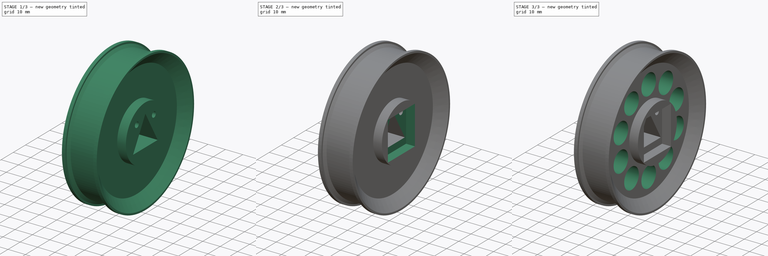
[diagram: build sequence overview — one tinted view per stage of 3, left to right]
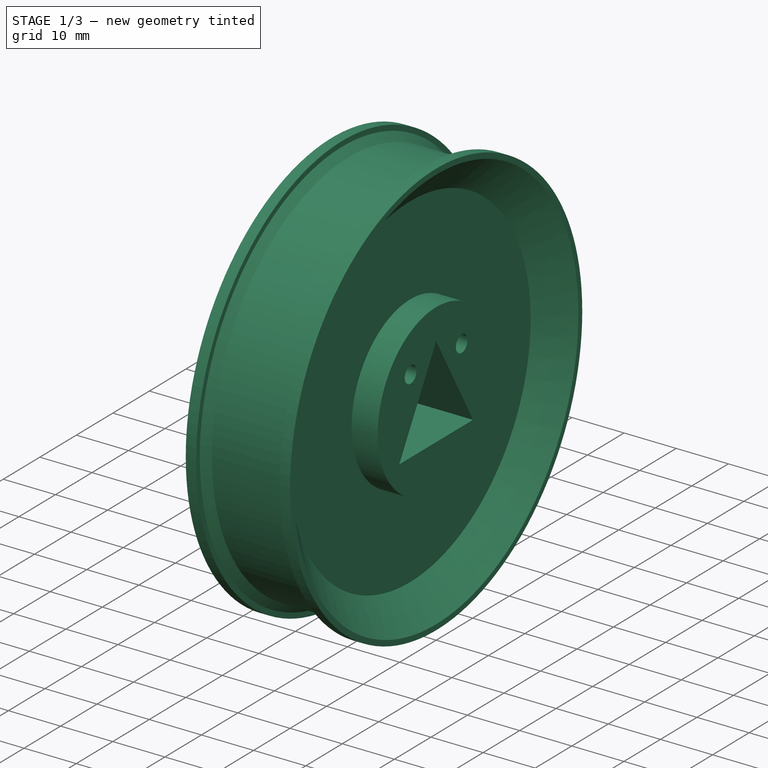
[diagram: stage 1 of 3 — iso view after this stage's code; geometry added in this stage tinted green]
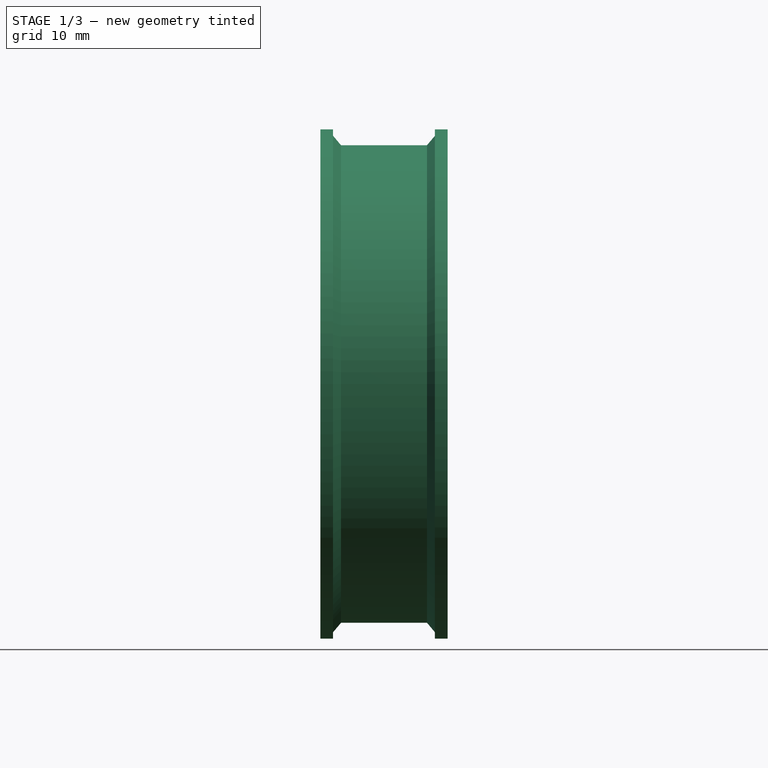
[diagram: stage 1 of 3 — front view after this stage's code; geometry added in this stage tinted green]
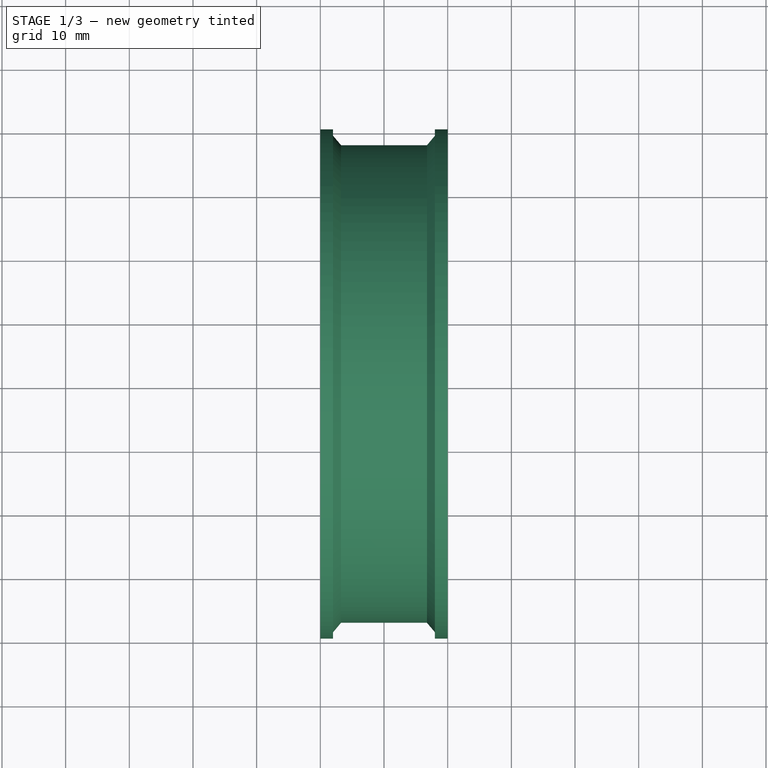
[diagram: stage 1 of 3 — top view after this stage's code; geometry added in this stage tinted green]
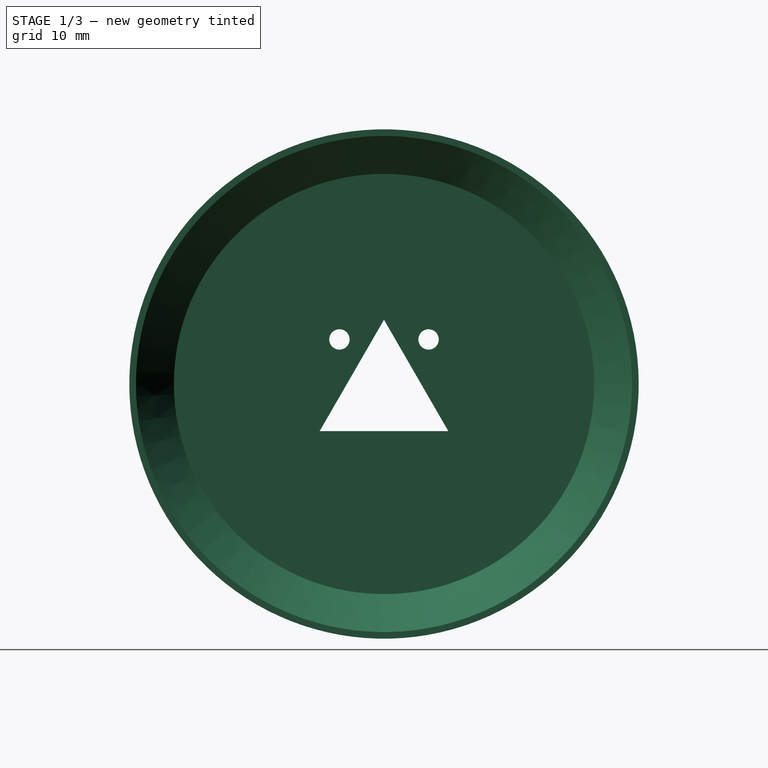
[diagram: stage 1 of 3 — right view after this stage's code; geometry added in this stage tinted green]
FCSTD DOCUMENT  (FreeCAD 0.17R13541 (Git))
Label: rim_v1
License: All rights reserved
LicenseURL: http://en.wikipedia.org/wiki/All_rights_reserved
objects: Sketcher::SketchObject×5, PartDesign::Pocket×4, PartDesign::Revolution×1, PartDesign::PolarPattern×1, PartDesign::Body×1
note: 17 computed .brp shape members not serialized (recipe doc carries the construction recipe); baked Part::Feature solids carry a one-line shape summary decoded from their .brp

FEATURE [Sketcher::SketchObject] Sketch
  MapMode = 5
  Support = -> [XY_Plane]
  sketch-geometry (18):
    g0: LineSegment StartX=8 StartY=39 StartZ=0 EndX=8 EndY=40 EndZ=0
    g1: LineSegment StartX=8 StartY=40 StartZ=0 EndX=10 EndY=40 EndZ=0
    g2: LineSegment StartX=10 StartY=40 StartZ=0 EndX=10 EndY=38.9588 EndZ=0
    g3: LineSegment StartX=10 StartY=38.9588 StartZ=0 EndX=5 EndY=33 EndZ=0
    g4: LineSegment StartX=5 StartY=33 StartZ=0 EndX=5 EndY=16 EndZ=0
    g5: LineSegment StartX=5 StartY=16 StartZ=0 EndX=10 EndY=16 EndZ=0
    g6: LineSegment StartX=10 StartY=16 StartZ=0 EndX=10 EndY=1 EndZ=0
    g7: LineSegment StartX=10 StartY=1 StartZ=0 EndX=-10 EndY=1 EndZ=0
    g8: LineSegment StartX=-10 StartY=1 StartZ=0 EndX=-10 EndY=16 EndZ=0
    g9: LineSegment StartX=-10 StartY=16 StartZ=0 EndX=-5 EndY=16 EndZ=0
    g10: LineSegment StartX=-5 StartY=16 StartZ=0 EndX=-5 EndY=33 EndZ=0
    g11: LineSegment StartX=-5 StartY=33 StartZ=0 EndX=-10 EndY=38.9588 EndZ=0
    g12: LineSegment StartX=-10 StartY=38.9588 StartZ=0 EndX=-10 EndY=40 EndZ=0
    g13: LineSegment StartX=-10 StartY=40 StartZ=0 EndX=-8 EndY=40 EndZ=0
    g14: LineSegment StartX=-8 StartY=40 StartZ=0 EndX=-8 EndY=39 EndZ=0
    g15: LineSegment StartX=-8 StartY=39 StartZ=0 EndX=-6.75 EndY=37.5103 EndZ=0
    g16: LineSegment StartX=-6.75 StartY=37.5103 StartZ=0 EndX=6.75 EndY=37.5103 EndZ=0
    g17: LineSegment StartX=6.75 StartY=37.5103 StartZ=0 EndX=8 EndY=39 EndZ=0
  constraints (53):
    c: Vertical(g0)
    c: Coincident(g1,g0)
    c: Horizontal(g1)
    c: Coincident(g2,g1)
    c: Coincident(g2,g3)
    c: Coincident(g3,g4)
    c: Vertical(g4)
    c: Coincident(g4,g5)
    c: Coincident(g5,g6)
    c: Vertical(g6)
    c: Coincident(g6,g7)
    c: Horizontal(g7)
    c: Coincident(g7,g8)
    c: Coincident(g8,g9)
    c: Horizontal(g9)
    c: Coincident(g9,g10)
    c: Vertical(g10)
    c: Coincident(g10,g11)
    c: Coincident(g11,g12)
    c: Coincident(g12,g13)
    c: Coincident(g13,g14)
    c: Vertical(g14)
    c: Horizontal(g13)
    c: Vertical(g2)
    c: Vertical(g12)
    c: DistanceY(g-1,g6) = 1
    c: Equal(g6,g8)
    c: Horizontal(g5)
    c: Equal(g5,g9)
    c: Vertical(g8)
    c: DistanceY(g6,g6) = 15
    c: Symmetric(g7,g6,g-2)
    c: DistanceX(g-1,g6) = 10
    c: DistanceX(g5,g5) = 5
    c: Equal(g10,g4)
    c: Equal(g11,g3)
    c: Symmetric(g13,g0,g-2)
    c: Equal(g13,g1)
    c: DistanceY(g12) = 40
    c: DistanceX(g12,g1) = 20
    c: DistanceY(g4,g4) = 17
    c: DistanceX(g1,g1) = 2
    c: Angle(g4,g3) = 2.44346
    c: Horizontal(g16)
    c: Coincident(g0,g17)
    c: Coincident(g16,g17)
    c: Coincident(g16,g15)
    c: Coincident(g14,g15)
    c: Angle(g-2,g17) = 2.44346
    c: Symmetric(g15,g16,g-2)
    c: Equal(g15,g17)
    c: DistanceY(g0,g0) = 1
    c: DistanceX(g-1,g16) = 6.75
FEATURE [PartDesign::Revolution] Revolution
  Angle = 360
  Axis = (1,0,0)
  Base = (0,0,0)
  Profile = -> Sketch
  ReferenceAxis = -> Sketch [H_Axis]
FEATURE [Sketcher::SketchObject] Sketch001
  MapMode = 5
  Placement = pos=(10,0,0) rot=(0.57735,0.57735,0.57735;2.0944rad)
  Support = -> [Revolution]
  sketch-geometry (5):
    g0: LineSegment StartX=-10.1 StartY=-7.39371 StartZ=0 EndX=0 EndY=10.1 EndZ=0
    g1: LineSegment StartX=0 StartY=10.1 StartZ=0 EndX=10.1 EndY=-7.39371 EndZ=0
    g2: LineSegment StartX=10.1 StartY=-7.39371 StartZ=0 EndX=-10.1 EndY=-7.39371 EndZ=0
    g3: Circle CenterX=-7 CenterY=7 CenterZ=0 NormalX=0 NormalY=0 NormalZ=1 AngleXU=0 Radius=1.6
    g4: Circle CenterX=7 CenterY=7 CenterZ=0 NormalX=0 NormalY=0 NormalZ=1 AngleXU=0 Radius=1.6
  constraints (15):
    c: Coincident(g0,g1)
    c: Coincident(g1,g2)
    c: Coincident(g0,g2)
    c: Equal(g2,g0)
    c: Equal(g0,g1)
    c: Horizontal(g2)
    c: DistanceX(g2,g2) = 20.2
    c: DistanceX(g0,g-1) = 10.1
    c: DistanceY(g-1,g0) = 10.1
    c: Horizontal(g4,g3)
    c: Equal(g3,g4)
    c: Radius(g4) = 1.6
    c: Symmetric(g3,g4,g-2)
    c: DistanceX(g-1,g4) = 7
    c: DistanceY(g-1,g4) = 7
FEATURE [PartDesign::Pocket] Pocket
  BaseFeature = -> Revolution
  Length = 5
  Length2 = 100
  Profile = -> Sketch001
  Type = 1
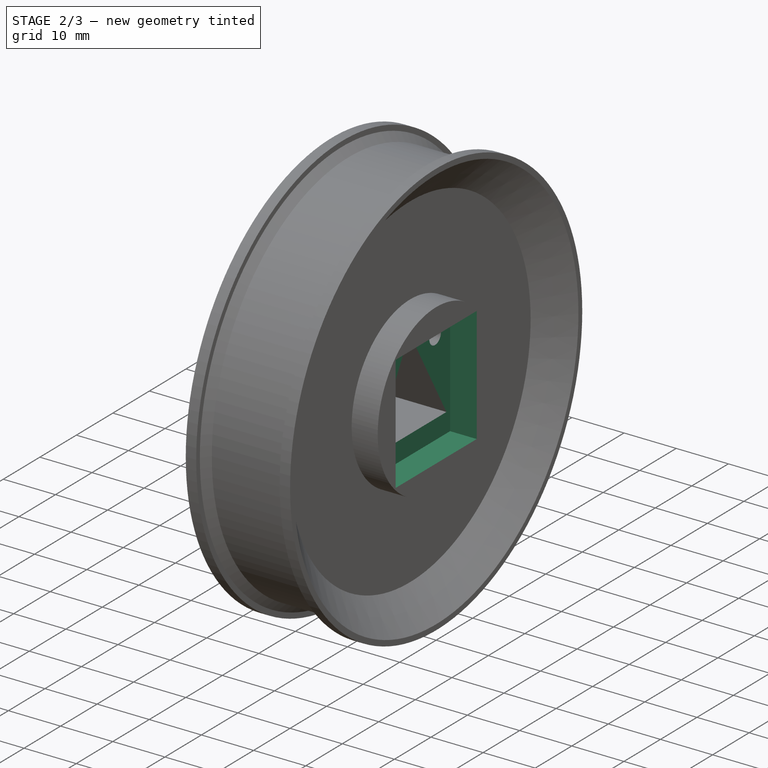
[diagram: stage 2 of 3 — iso view after this stage's code; geometry added in this stage tinted green]
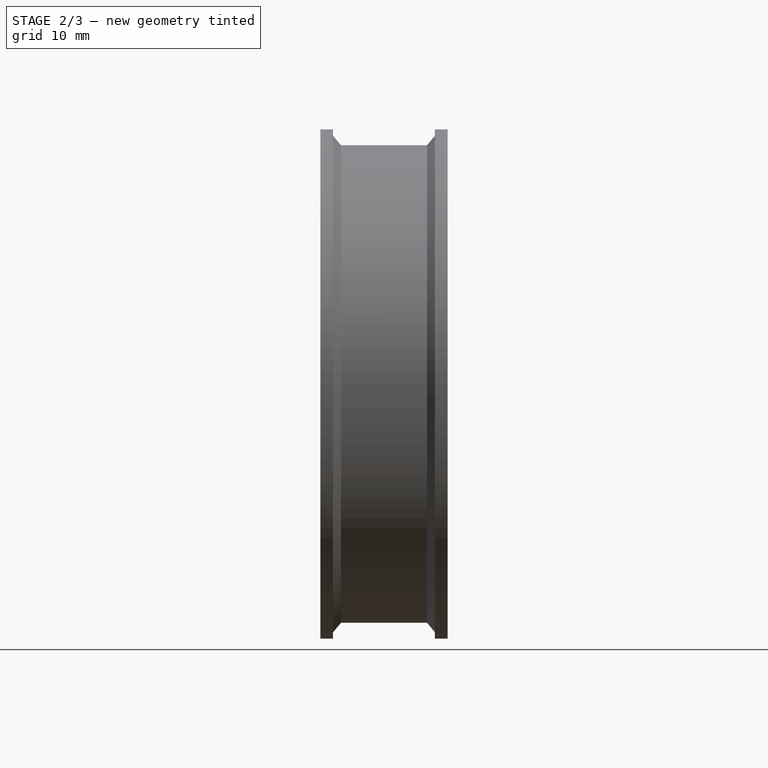
[diagram: stage 2 of 3 — front view after this stage's code; geometry added in this stage tinted green]
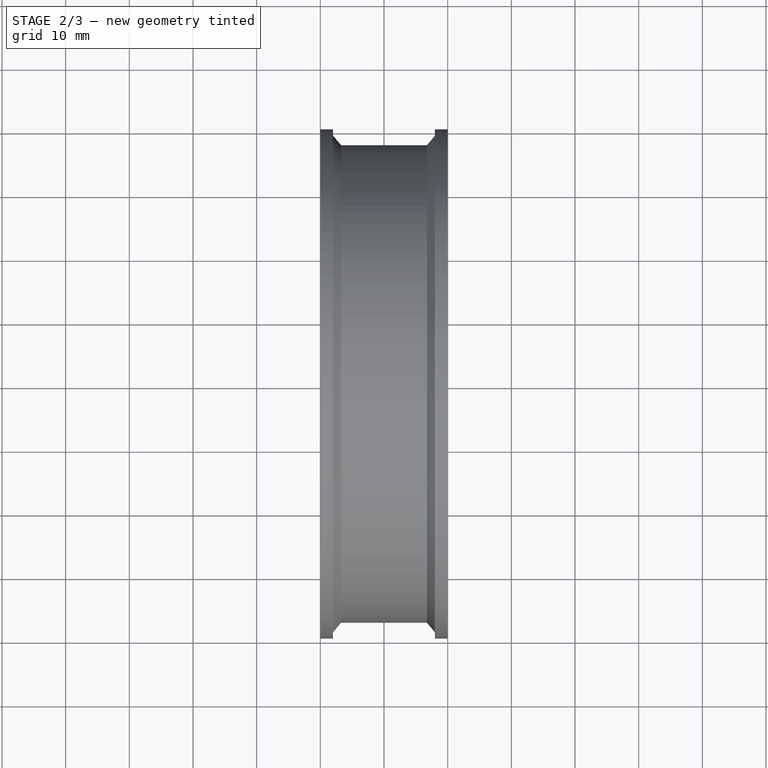
[diagram: stage 2 of 3 — top view after this stage's code; geometry added in this stage tinted green]
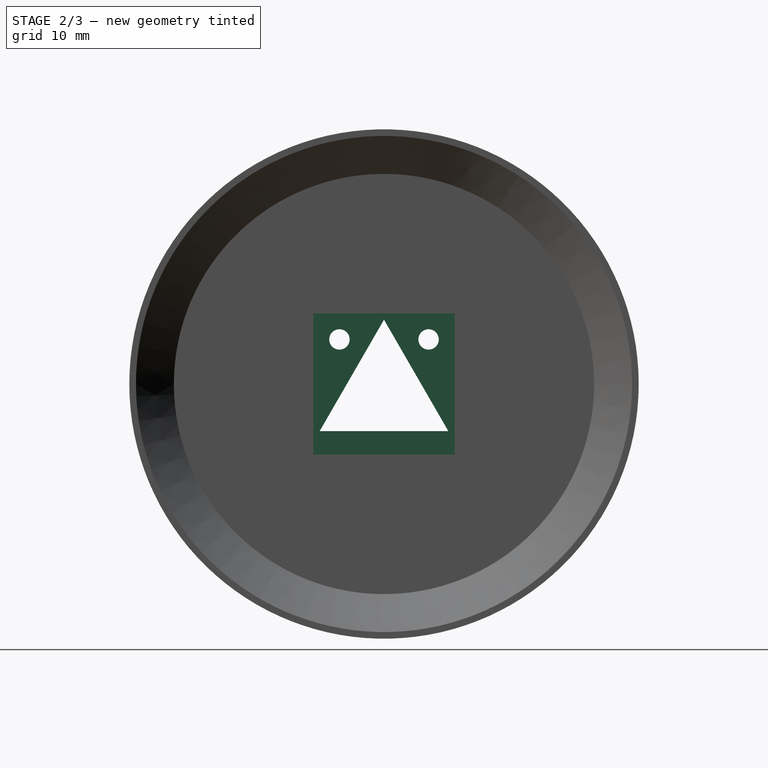
[diagram: stage 2 of 3 — right view after this stage's code; geometry added in this stage tinted green]
FEATURE [Sketcher::SketchObject] Sketch003
  MapMode = 5
  Placement = pos=(10,0,0) rot=(0.57735,0.57735,0.57735;2.0944rad)
  Support = -> [Pocket]
  sketch-geometry (4):
    g0: LineSegment StartX=-11.1 StartY=11.1 StartZ=0 EndX=11.1 EndY=11.1 EndZ=0
    g1: LineSegment StartX=11.1 StartY=11.1 StartZ=0 EndX=11.1 EndY=-11.1 EndZ=0
    g2: LineSegment StartX=11.1 StartY=-11.1 StartZ=0 EndX=-11.1 EndY=-11.1 EndZ=0
    g3: LineSegment StartX=-11.1 StartY=-11.1 StartZ=0 EndX=-11.1 EndY=11.1 EndZ=0
  constraints (12):
    c: Coincident(g0,g1)
    c: Coincident(g1,g2)
    c: Coincident(g2,g3)
    c: Coincident(g3,g0)
    c: Horizontal(g0)
    c: Horizontal(g2)
    c: Vertical(g1)
    c: Vertical(g3)
    c: Equal(g2,g1)
    c: Symmetric(g2,g1,g-2)
    c: Symmetric(g0,g2,g-1)
    c: DistanceY(g3,g3) = 22.2
FEATURE [PartDesign::Pocket] Pocket001
  BaseFeature = -> Pocket
  Length = 5.1
  Length2 = 100
  Profile = -> Sketch003
  Type = 0
FEATURE [Sketcher::SketchObject] Sketch004
  MapMode = 5
  Placement = pos=(-10,0,0) rot=(0.57735,-0.57735,-0.57735;2.0944rad)
  Support = -> [Pocket001]
  sketch-geometry (2):
    g0: Circle CenterX=-7 CenterY=7 CenterZ=0 NormalX=0 NormalY=0 NormalZ=1 AngleXU=0 Radius=2.9
    g1: Circle CenterX=7 CenterY=7 CenterZ=0 NormalX=0 NormalY=0 NormalZ=1 AngleXU=0 Radius=2.9
  constraints (6):
    c: Horizontal(g0,g1)
    c: Symmetric(g0,g1,g-2)
    c: DistanceX(g-1,g1) = 7
    c: DistanceY(g-1,g1) = 7
    c: Equal(g0,g1)
    c: Radius(g1) = 2.9
FEATURE [PartDesign::Pocket] Pocket002
  BaseFeature = -> Pocket001
  Length = 3
  Length2 = 100
  Profile = -> Sketch004
  Type = 0
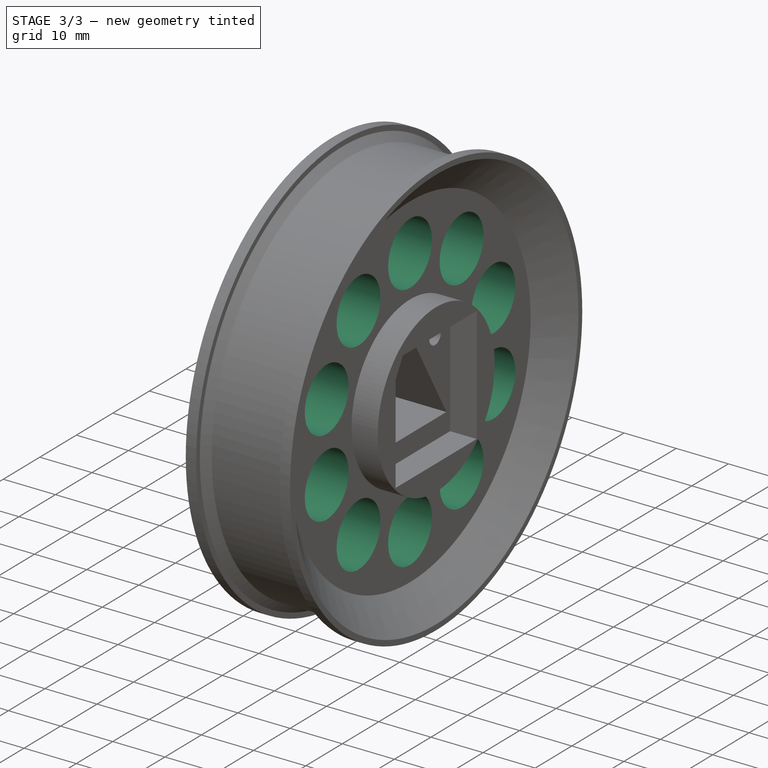
[diagram: stage 3 of 3 — iso view after this stage's code; geometry added in this stage tinted green]
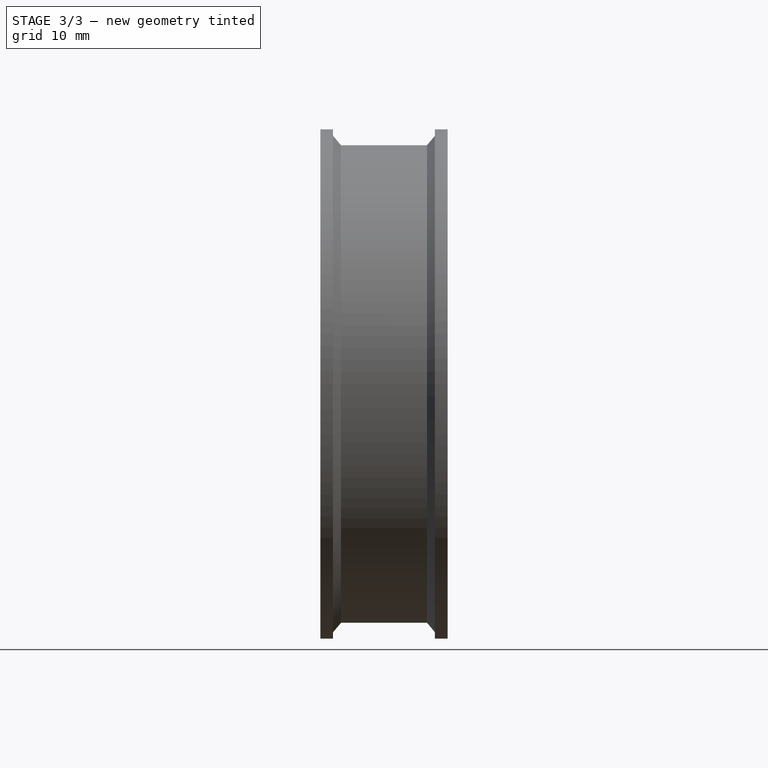
[diagram: stage 3 of 3 — front view after this stage's code; geometry added in this stage tinted green]
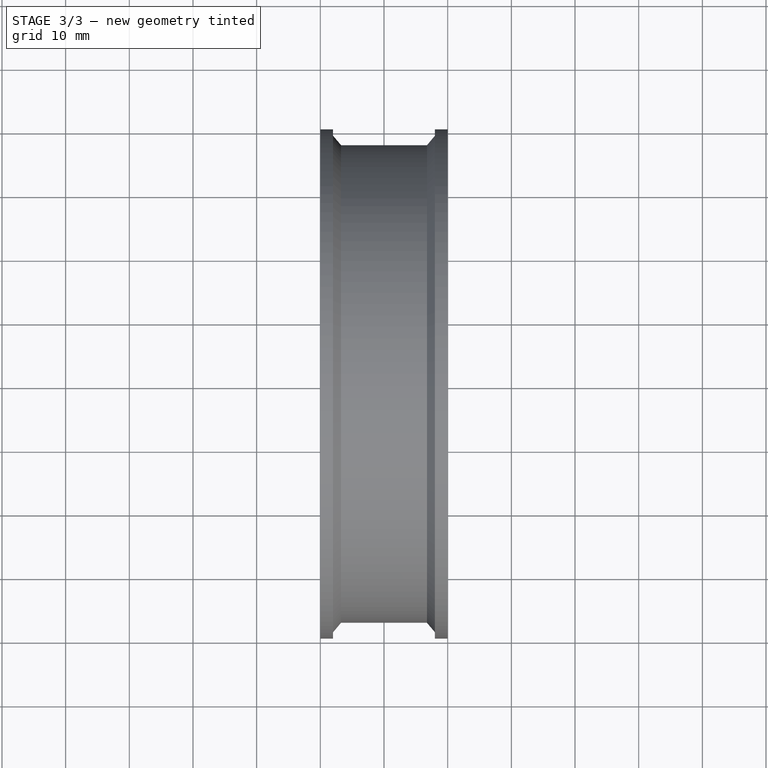
[diagram: stage 3 of 3 — top view after this stage's code; geometry added in this stage tinted green]
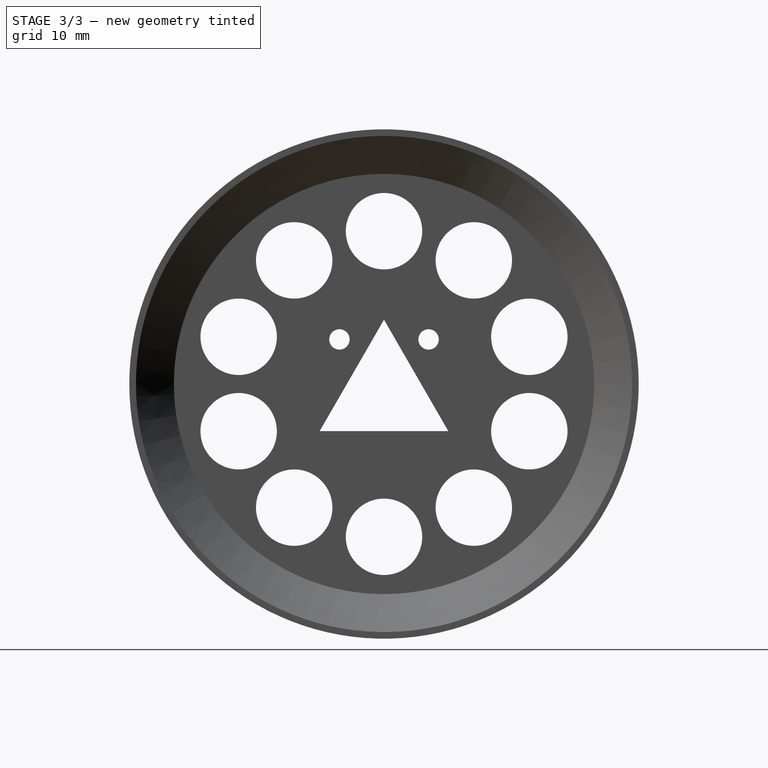
[diagram: stage 3 of 3 — right view after this stage's code; geometry added in this stage tinted green]
FEATURE [Sketcher::SketchObject] Sketch005
  MapMode = 5
  Placement = pos=(5,0,0) rot=(0.57735,0.57735,0.57735;2.0944rad)
  Support = -> [Pocket002]
  sketch-geometry (1):
    g0: Circle CenterX=0 CenterY=24 CenterZ=0 NormalX=0 NormalY=0 NormalZ=1 AngleXU=0 Radius=6
  constraints (3):
    c: PointOnObject(g0,g-2)
    c: Radius(g0) = 6
    c: DistanceY(g-1,g0) = 24
FEATURE [PartDesign::Pocket] Pocket003
  BaseFeature = -> Pocket002
  Length = 5
  Length2 = 100
  Profile = -> Sketch005
  Type = 1
FEATURE [PartDesign::PolarPattern] PolarPattern
  Angle = 360
  Axis = -> Sketch005 [N_Axis]
  BaseFeature = -> Pocket003
  Occurrences = 10
  Originals = -> [Pocket003]
FEATURE [PartDesign::Body] Body
  Group = -> [Sketch,Revolution,Sketch001,Pocket,Sketch003,Pocket001,Sketch004,Pocket002,Sketch005,Pocket003,PolarPattern]
  Origin = -> Origin
  Tip = -> PolarPattern
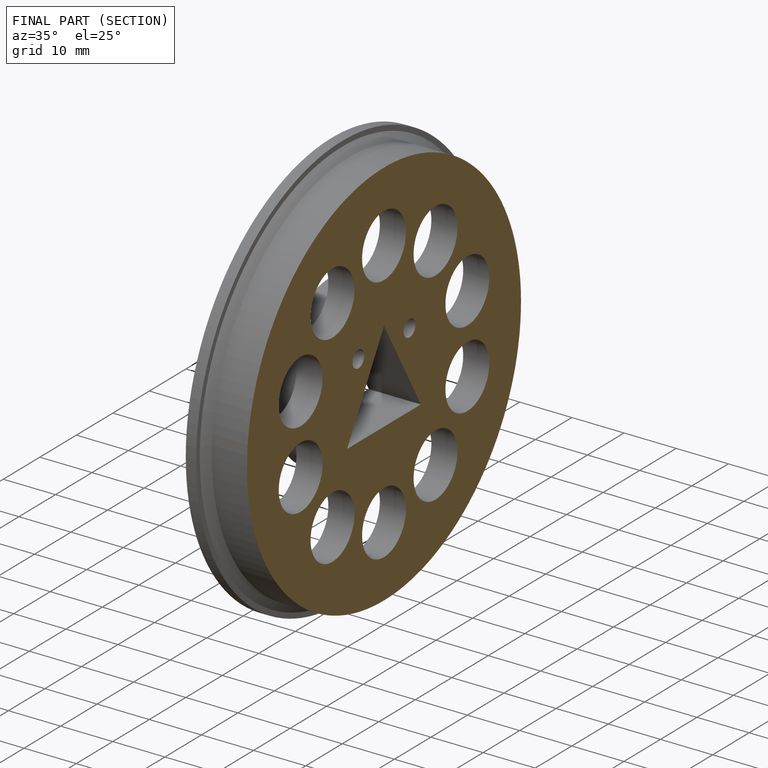
[diagram: finished part — half-section view (interior)]
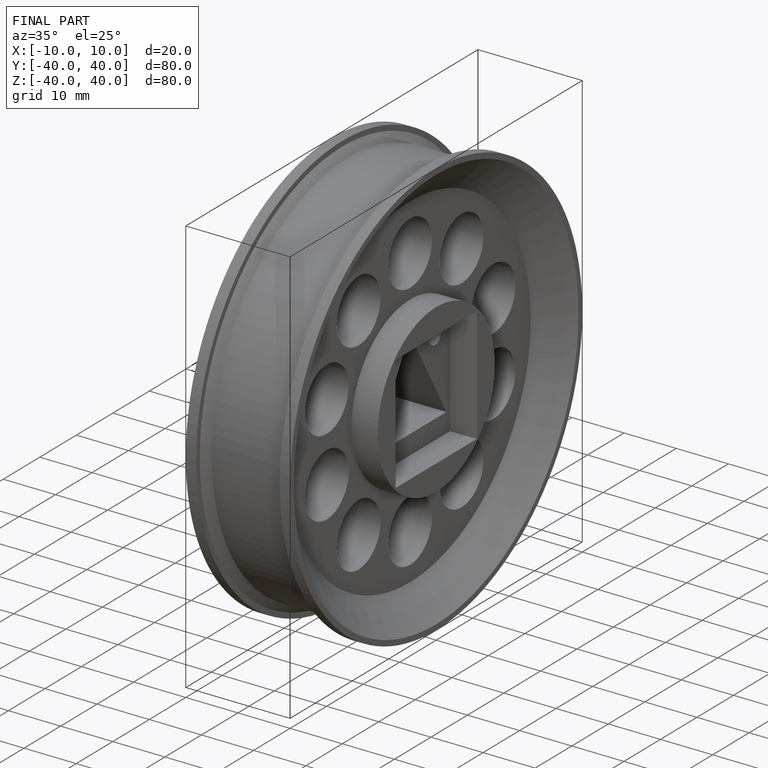
[diagram: finished part — iso view with bounding-box wireframe]
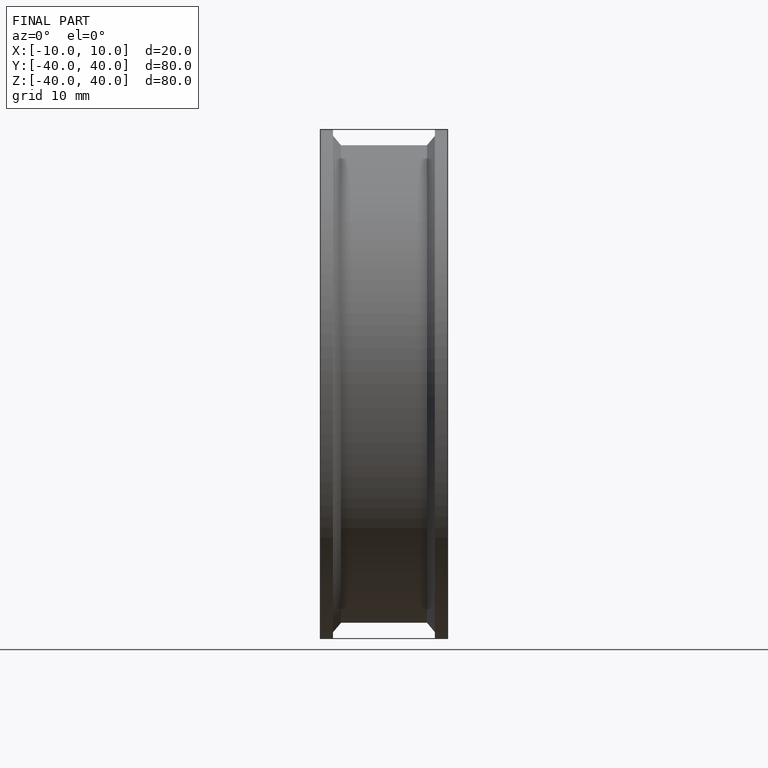
[diagram: finished part — front view with bounding-box wireframe]
